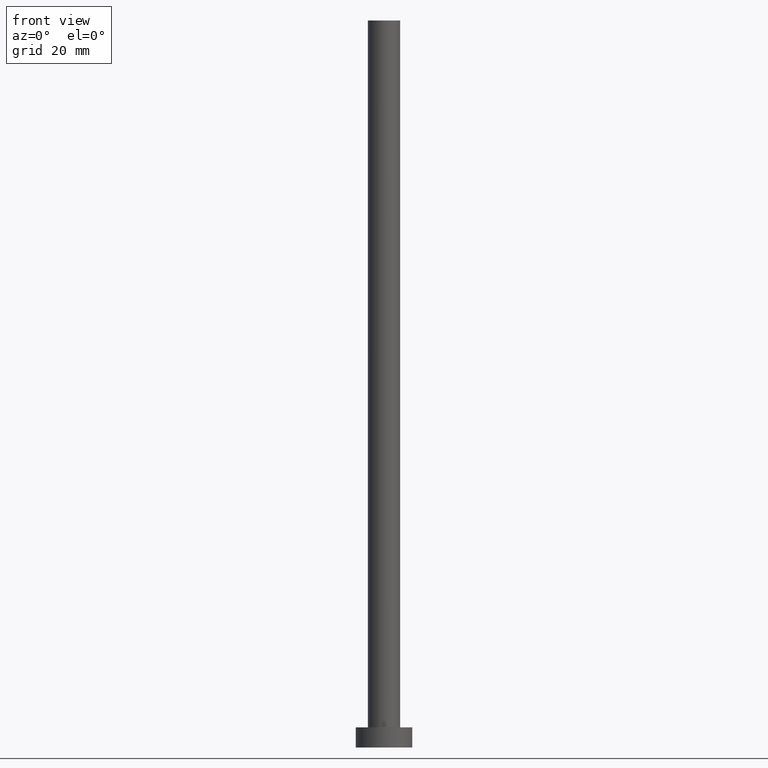
[diagram: clean part render]
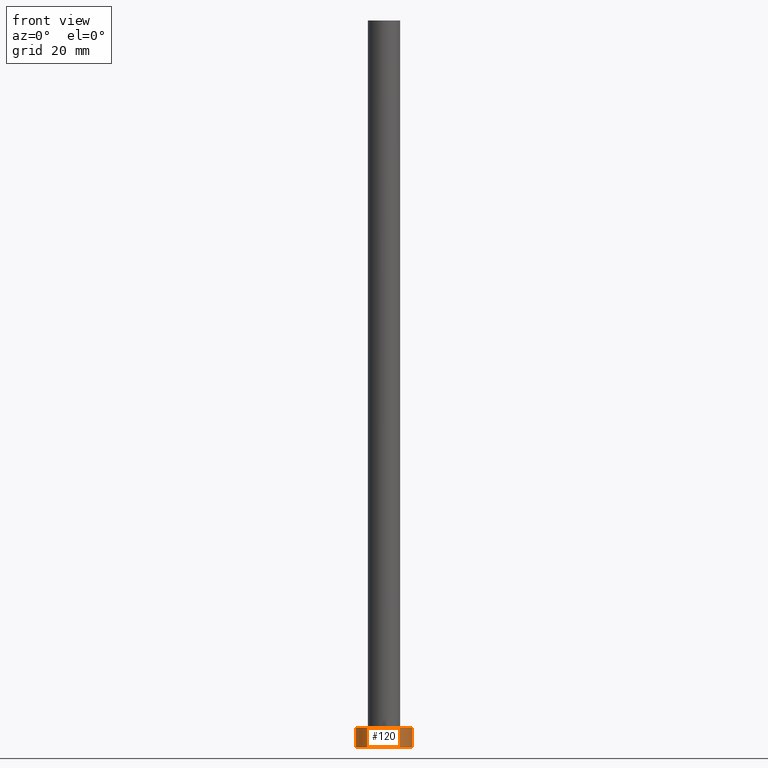
[diagram: same view with one face highlighted and labeled with its STEP entity id]
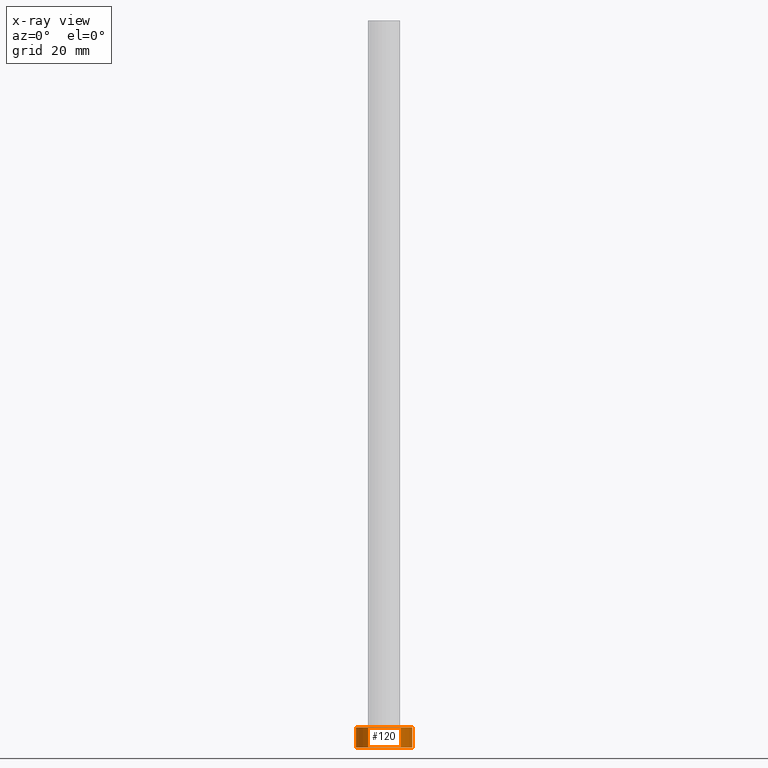
[diagram: x-ray of the same camera — body ghosted, the highlighted face saturated]
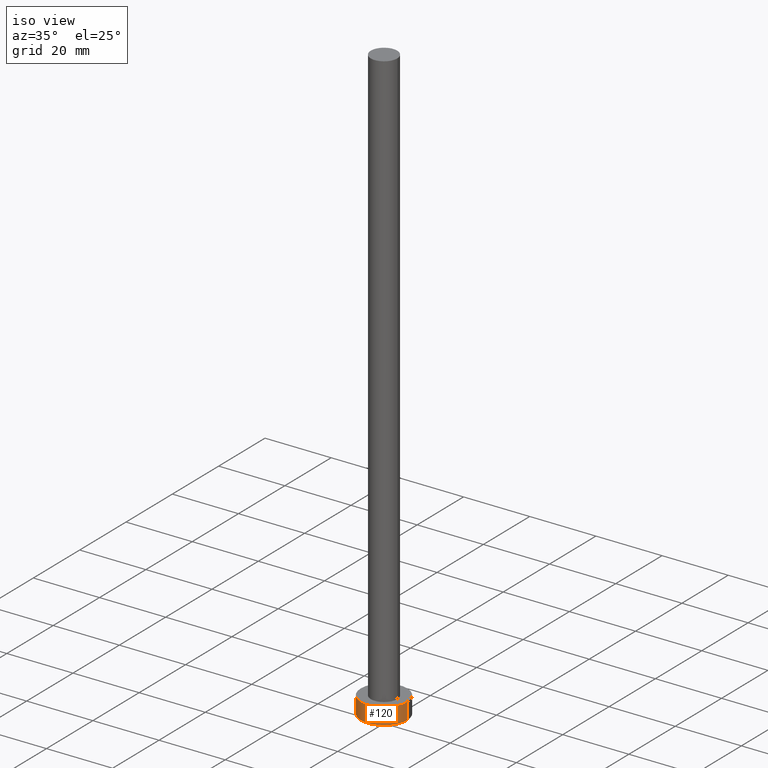
[diagram: same view with one face highlighted and labeled with its STEP entity id]
A machine part, front view. The second image highlights one B-rep face of the part: STEP entity #120.
The next image is the same camera in x-ray: the body ghosted, the highlighted face saturated — about 0% of this face is hidden behind the body in this view.
A second angle (iso view) of the same face is appended — the face is thin or edge-on in the first view.
In plain terms, the highlighted cylindrical surface (edge-blend (fillet) strip) has radius 7 mm, axis along (-0, -0, -1).
Its self-contained STEP definition (entity closure, byte-faithful):
#1 = ORIENTED_EDGE ( 'NONE', *, *, #91, .T. ) ;
#8 = DIRECTION ( 'NONE',  ( 0.000000000000000000, 0.000000000000000000, 1.000000000000000000 ) ) ;
#16 = CIRCLE ( 'NONE', #242, 7.000000000000000000 ) ;
#26 = LINE ( 'NONE', #186, #123 ) ;
#28 = FACE_OUTER_BOUND ( 'NONE', #197, .T. ) ;
#32 = CARTESIAN_POINT ( 'NONE',  ( 7.000000000000000000, 8.572527594031473190E-16, 0.000000000000000000 ) ) ;
#35 = CARTESIAN_POINT ( 'NONE',  ( -7.000000000000000000, 0.000000000000000000, 0.000000000000000000 ) ) ;
#45 = EDGE_CURVE ( 'NONE', #55, #196, #188, .T. ) ;
#55 = VERTEX_POINT ( 'NONE', #111 ) ;
#66 = DIRECTION ( 'NONE',  ( -1.000000000000000000, 0.000000000000000000, 0.000000000000000000 ) ) ;
#85 = ORIENTED_EDGE ( 'NONE', *, *, #192, .T. ) ;
#89 = CIRCLE ( 'NONE', #191, 7.000000000000000000 ) ;
#91 = EDGE_CURVE ( 'NONE', #158, #252, #26, .T. ) ;
#92 = DIRECTION ( 'NONE',  ( 1.000000000000000000, 0.000000000000000000, 0.000000000000000000 ) ) ;
#108 = DIRECTION ( 'NONE',  ( -0.000000000000000000, -0.000000000000000000, -1.000000000000000000 ) ) ;
#111 = CARTESIAN_POINT ( 'NONE',  ( 7.000000000000000000, 8.572527594031473190E-16, 5.000000000000000000 ) ) ;
#114 = VECTOR ( 'NONE', #108, 1000.000000000000000 ) ;
#120 = ADVANCED_FACE ( 'NONE', ( #28 ), #187, .T. ) ;
#123 = VECTOR ( 'NONE', #204, 1000.000000000000000 ) ;
#124 = DIRECTION ( 'NONE',  ( 1.000000000000000000, 0.000000000000000000, 0.000000000000000000 ) ) ;
#129 = DIRECTION ( 'NONE',  ( 0.000000000000000000, 0.000000000000000000, 1.000000000000000000 ) ) ;
#148 = CARTESIAN_POINT ( 'NONE',  ( -7.000000000000000000, 0.000000000000000000, 5.000000000000000000 ) ) ;
#158 = VERTEX_POINT ( 'NONE', #148 ) ;
#160 = ORIENTED_EDGE ( 'NONE', *, *, #45, .F. ) ;
#164 = CARTESIAN_POINT ( 'NONE',  ( 0.000000000000000000, 0.000000000000000000, 5.000000000000000000 ) ) ;
#174 = EDGE_CURVE ( 'NONE', #158, #55, #16, .T. ) ;
#181 = ORIENTED_EDGE ( 'NONE', *, *, #174, .F. ) ;
#186 = CARTESIAN_POINT ( 'NONE',  ( -7.000000000000000000, 0.000000000000000000, 5.000000000000000000 ) ) ;
#187 = CYLINDRICAL_SURFACE ( 'NONE', #250, 7.000000000000000000 ) ;
#188 = LINE ( 'NONE', #223, #114 ) ;
#191 = AXIS2_PLACEMENT_3D ( 'NONE', #225, #129, #124 ) ;
#192 = EDGE_CURVE ( 'NONE', #252, #196, #89, .T. ) ;
#196 = VERTEX_POINT ( 'NONE', #32 ) ;
#197 = EDGE_LOOP ( 'NONE', ( #160, #181, #1, #85 ) ) ;
#204 = DIRECTION ( 'NONE',  ( -0.000000000000000000, -0.000000000000000000, -1.000000000000000000 ) ) ;
#219 = DIRECTION ( 'NONE',  ( -0.000000000000000000, -0.000000000000000000, -1.000000000000000000 ) ) ;
#220 = CARTESIAN_POINT ( 'NONE',  ( 0.000000000000000000, 0.000000000000000000, 5.000000000000000000 ) ) ;
#223 = CARTESIAN_POINT ( 'NONE',  ( 7.000000000000000000, 8.572527594031473190E-16, 5.000000000000000000 ) ) ;
#225 = CARTESIAN_POINT ( 'NONE',  ( 0.000000000000000000, 0.000000000000000000, 0.000000000000000000 ) ) ;
#242 = AXIS2_PLACEMENT_3D ( 'NONE', #220, #8, #92 ) ;
#250 = AXIS2_PLACEMENT_3D ( 'NONE', #164, #219, #66 ) ;
#252 = VERTEX_POINT ( 'NONE', #35 ) ;